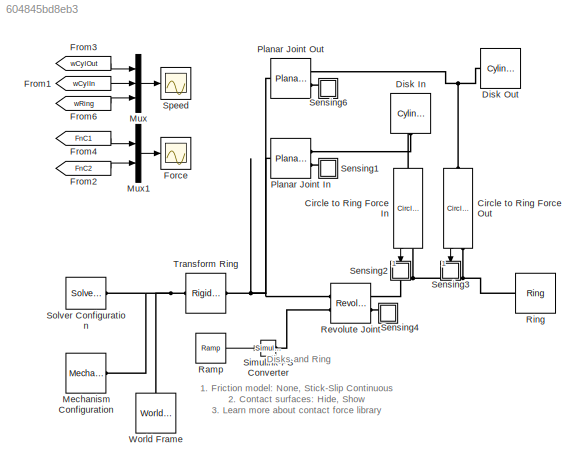
MODEL slx_604845bd8eb3
KIND model
CONFIG AbsTol = 1e-5
CONFIG EnableMultiTasking = on
CONFIG FixedStep = auto
CONFIG MaxStep = 1e-2
CONFIG MinStep = auto
CONFIG PostLoadFcn = warning off Simulink:Engine:UsingDefaultMaxStepSize\n
CONFIG RelTol = 1e-4
CONFIG SampleTimeConstraint = Unconstrained
CONFIG Solver = ode15s
CONFIG SolverName = ode15s
CONFIG StartFcn = tic;
CONFIG StartTime = 0.0
CONFIG StopFcn = Elapsed_Sim_Time = toc;\ndisp(['Elapsed Sim Time = ' num2str(Elapsed_Sim_Time)]);\n
CONFIG StopTime = 30
WORKSPACE source: MATLAB code (in-file)
WORKSPACE code: Disk_Out.radius = 0.05;
WORKSPACE code: Disk_Out.length = 0.05;
WORKSPACE code: Disk_Out.density = 1000;
WORKSPACE code: Disk_In.radius = 0.05;
WORKSPACE code: Disk_In.length = 0.05;
WORKSPACE code: Disk_In.density = 1000;
WORKSPACE code: Ring.outer_radius = 0.22;
WORKSPACE code: Ring.inner_radius = 0.2;
WORKSPACE code: Ring.length = 0.05;
WORKSPACE code: Ring.density = 1000;
BLOCK [Reference] Circle to Ring Force In  REF=Contact_Forces_Lib/2D/Circle to Ring Force
  Ports = [0, 1, 0, 0, 0, 1, 1]
  SourceBlock = Contact_Forces_Lib/2D/Circle to Ring Force
  SourceProductName = Simscape Multibody Contact Forces Library
  SourceType = Circle to Ring Force
BLOCK [Reference] Circle to Ring Force Out  REF=Contact_Forces_Lib/2D/Circle to Ring Force
  Ports = [0, 1, 0, 0, 0, 1, 1]
  SourceBlock = Contact_Forces_Lib/2D/Circle to Ring Force
  SourceProductName = Simscape Multibody Contact Forces Library
  SourceType = Circle to Ring Force
BLOCK [Reference] Disk In  REF=Parts_Lib/Cylinder
  Ports = [0, 0, 0, 0, 0, 1]
  SourceBlock = Parts_Lib/Cylinder
  SourceType = Solid Cylinder with Markings
BLOCK [Reference] Disk Out  REF=Parts_Lib/Cylinder
  Ports = [0, 0, 0, 0, 0, 1]
  SourceBlock = Parts_Lib/Cylinder
  SourceType = Solid Cylinder with Markings
BLOCK [Scope] Force
  Floating = off
  NumInputPorts = 1
  Ports = [1]
  ScopeSpecificationString = Simulink.scopes.TimeScopeBlockCfg('CurrentConfiguration', extmgr.ConfigurationSet(extmgr.Configuration('Core','General UI',true,'FigureColor',[0.501960784313725 0.501960784313725 0.501960784313725]),extmgr.Configuration('Core','Source UI',true),extmgr.Configuration('Sources','WiredSimulink',true,'DataLoggingVariableName','ScopeData1','DataLoggingSaveFormat','StructureWithTime','DataLoggingDecimati...<+2704ch>
BLOCK [From] From1
  GotoTag = wCylIn
  TagVisibility = global
BLOCK [From] From2
  GotoTag = FnC2
  TagVisibility = global
BLOCK [From] From3
  GotoTag = wCylOut
  TagVisibility = global
BLOCK [From] From4
  GotoTag = FnC1
  TagVisibility = global
BLOCK [From] From6
  GotoTag = wRing
  TagVisibility = global
BLOCK [Reference] Mechanism Configuration  REF=sm_lib/Utilities/Mechanism
Configuration
  Ports = [0, 0, 0, 0, 0, 0, 1]
  SourceBlock = sm_lib/Utilities/Mechanism\nConfiguration
  SourceProductBaseCode = MS
  SourceProductName = Simscape Multibody
  SourceType = Mechanism\nConfiguration
BLOCK [Mux] Mux
  DisplayOption = bar
  Inputs = 3
  Ports = [3, 1]
BLOCK [Mux] Mux1
  DisplayOption = bar
  Inputs = 2
  Ports = [2, 1]
BLOCK [Reference] Planar Joint In  REF=sm_lib/Joints/Planar Joint
  Ports = [0, 0, 0, 0, 0, 1, 2]
  SourceBlock = sm_lib/Joints/Planar Joint
  SourceProductBaseCode = MS
  SourceProductName = Simscape Multibody
  SourceType = Planar Joint
BLOCK [Reference] Planar Joint Out  REF=sm_lib/Joints/Planar Joint
  Ports = [0, 0, 0, 0, 0, 1, 2]
  SourceBlock = sm_lib/Joints/Planar Joint
  SourceProductBaseCode = MS
  SourceProductName = Simscape Multibody
  SourceType = Planar Joint
BLOCK [Reference] Ramp  REF=simulink/Sources/Ramp
  Ports = [0, 1]
  SourceBlock = simulink/Sources/Ramp
  SourceProductBaseCode = SL
  SourceProductName = Simulink
  SourceType = Ramp
BLOCK [Reference] Revolute Joint  REF=sm_lib/Joints/Revolute Joint
  Ports = [0, 0, 0, 0, 0, 2, 2]
  SourceBlock = sm_lib/Joints/Revolute Joint
  SourceProductBaseCode = MS
  SourceProductName = Simscape Multibody
  SourceType = Revolute Joint
BLOCK [Reference] Ring  REF=Parts_Lib/Ring
  Ports = [0, 0, 0, 0, 0, 1]
  SourceBlock = Parts_Lib/Ring
  SourceType = Solid Cylinder with Markings
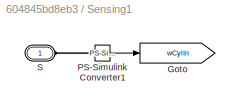
BLOCK [SubSystem] Sensing1
  Ports = [0, 0, 0, 0, 0, 1]
  RequestExecContextInheritance = off
BLOCK [Goto] Sensing1/Goto
  GotoTag = wCylIn
  TagVisibility = global
BLOCK [Reference] Sensing1/PS-Simulink Converter1  REF=nesl_utility/PS-Simulink
Converter
  Ports = [0, 1, 0, 0, 0, 1]
  SourceBlock = nesl_utility/PS-Simulink\nConverter
  SourceProductBaseCode = SS
  SourceProductName = Simscape
  SourceType = PS-Simulink\nConverter
BLOCK [PMIOPort] Sensing1/S
  Side = Left
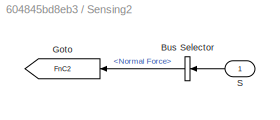
BLOCK [SubSystem] Sensing2
  Ports = [1]
  RequestExecContextInheritance = off
BLOCK [BusSelector] Sensing2/Bus Selector
  OutputAsBus = off
  OutputSignals = Normal Force
  Ports = [1, 1]
BLOCK [Goto] Sensing2/Goto
  GotoTag = FnC2
  TagVisibility = global
BLOCK [Inport] Sensing2/S
  IconDisplay = Port number
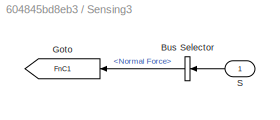
BLOCK [SubSystem] Sensing3
  Ports = [1]
  RequestExecContextInheritance = off
BLOCK [BusSelector] Sensing3/Bus Selector
  OutputAsBus = off
  OutputSignals = Normal Force
  Ports = [1, 1]
BLOCK [Goto] Sensing3/Goto
  GotoTag = FnC1
  TagVisibility = global
BLOCK [Inport] Sensing3/S
  IconDisplay = Port number
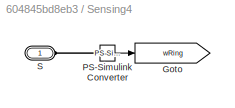
BLOCK [SubSystem] Sensing4
  Ports = [0, 0, 0, 0, 0, 1]
  RequestExecContextInheritance = off
BLOCK [Goto] Sensing4/Goto
  GotoTag = wRing
  TagVisibility = global
BLOCK [Reference] Sensing4/PS-Simulink Converter  REF=nesl_utility/PS-Simulink
Converter
  Ports = [0, 1, 0, 0, 0, 1]
  SourceBlock = nesl_utility/PS-Simulink\nConverter
  SourceProductBaseCode = SS
  SourceProductName = Simscape
  SourceType = PS-Simulink\nConverter
BLOCK [PMIOPort] Sensing4/S
  Side = Left
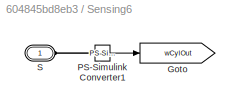
BLOCK [SubSystem] Sensing6
  Ports = [0, 0, 0, 0, 0, 1]
  RequestExecContextInheritance = off
BLOCK [Goto] Sensing6/Goto
  GotoTag = wCylOut
  TagVisibility = global
BLOCK [Reference] Sensing6/PS-Simulink Converter1  REF=nesl_utility/PS-Simulink
Converter
  Ports = [0, 1, 0, 0, 0, 1]
  SourceBlock = nesl_utility/PS-Simulink\nConverter
  SourceProductBaseCode = SS
  SourceProductName = Simscape
  SourceType = PS-Simulink\nConverter
BLOCK [PMIOPort] Sensing6/S
  Side = Left
BLOCK [Reference] Simulink-PS Converter  REF=nesl_utility/Simulink-PS
Converter
  Ports = [1, 0, 0, 0, 0, 0, 1]
  SourceBlock = nesl_utility/Simulink-PS\nConverter
  SourceProductBaseCode = SS
  SourceProductName = Simscape
  SourceType = Simulink-PS\nConverter
BLOCK [Reference] Solver Configuration  REF=nesl_utility/Solver
Configuration
  Ports = [0, 0, 0, 0, 0, 0, 1]
  SourceBlock = nesl_utility/Solver\nConfiguration
  SourceProductBaseCode = SS
  SourceProductName = Simscape
  SourceType = Solver\nConfiguration
BLOCK [Scope] Speed
  Floating = off
  NumInputPorts = 1
  Ports = [1]
  ScopeSpecificationString = Simulink.scopes.TimeScopeBlockCfg('CurrentConfiguration', extmgr.ConfigurationSet(extmgr.Configuration('Core','General UI',true,'FigureColor',[0.501960784313725 0.501960784313725 0.501960784313725]),extmgr.Configuration('Core','Source UI',true),extmgr.Configuration('Sources','WiredSimulink',true,'DataLoggingVariableName','ScopeData7','DataLoggingSaveFormat','StructureWithTime','DataLoggingDecimati...<+2878ch>
BLOCK [Reference] Transform Ring  REF=sm_lib/Frames and
Transforms/Rigid
Transform
  Ports = [0, 0, 0, 0, 0, 1, 1]
  SourceBlock = sm_lib/Frames and\nTransforms/Rigid\nTransform
  SourceProductBaseCode = MS
  SourceProductName = Simscape Multibody
  SourceType = Rigid\nTransform
BLOCK [Reference] World Frame  REF=sm_lib/Frames and
Transforms/World Frame
  Ports = [0, 0, 0, 0, 0, 0, 1]
  SourceBlock = sm_lib/Frames and\nTransforms/World Frame
  SourceProductBaseCode = MS
  SourceProductName = Simscape Multibody
  SourceType = World Frame
ANNOTATION (root): 1. Friction model: None , Stick-Slip Continuous 2. Contact surfaces: Hide , Show 3. Learn more about contact force library
ANNOTATION (root): Disks and Ring
LINE Circle to Ring Force In:1 -> Sensing2:1
LINE Circle to Ring Force Out:1 -> Sensing3:1
LINE From1:1 -> Mux:2
LINE From2:1 -> Mux1:2
LINE From3:1 -> Mux:1
LINE From4:1 -> Mux1:1
LINE From6:1 -> Mux:3
LINE Mux1:1 -> Force:1
LINE Mux:1 -> Speed:1
LINE Ramp:1 -> Simulink-PS Converter:1
LINE Sensing1/PS-Simulink Converter1:1 -> Sensing1/Goto:1
LINE Sensing2/Bus Selector:1 -> Sensing2/Goto:1
LINE Sensing2/S:1 -> Sensing2/Bus Selector:1
LINE Sensing3/Bus Selector:1 -> Sensing3/Goto:1
LINE Sensing3/S:1 -> Sensing3/Bus Selector:1
LINE Sensing4/PS-Simulink Converter:1 -> Sensing4/Goto:1
LINE Sensing6/PS-Simulink Converter1:1 -> Sensing6/Goto:1
PNET net1: Circle to Ring Force In:LConn1 -- Disk In:LConn1 -- Planar Joint In:RConn1
PNET net2: Circle to Ring Force In:RConn1 -- Circle to Ring Force Out:RConn1 -- Revolute Joint:RConn1 -- Ring:LConn1
PNET net3: Circle to Ring Force Out:LConn1 -- Disk Out:LConn1 -- Planar Joint Out:RConn1
PNET net4: Mechanism Configuration:RConn1 -- Solver Configuration:RConn1 -- Transform Ring:LConn1 -- World Frame:RConn1
PNET net5: Planar Joint In:LConn1 -- Planar Joint Out:LConn1 -- Revolute Joint:LConn1 -- Transform Ring:RConn1
PLINE Planar Joint In:RConn2 -- Sensing1:LConn1
PLINE Planar Joint Out:RConn2 -- Sensing6:LConn1
PLINE Revolute Joint:LConn2 -- Simulink-PS Converter:RConn1
PLINE Revolute Joint:RConn2 -- Sensing4:LConn1
PLINE Sensing1/PS-Simulink Converter1:LConn1 -- Sensing1/S:RConn1
PLINE Sensing4/PS-Simulink Converter:LConn1 -- Sensing4/S:RConn1
PLINE Sensing6/PS-Simulink Converter1:LConn1 -- Sensing6/S:RConn1
note: PNET lines group multi-terminal physical nets as a canonical sorted terminal list (undirected conserving connections); 2-terminal nets keep the pairwise PLINE form
